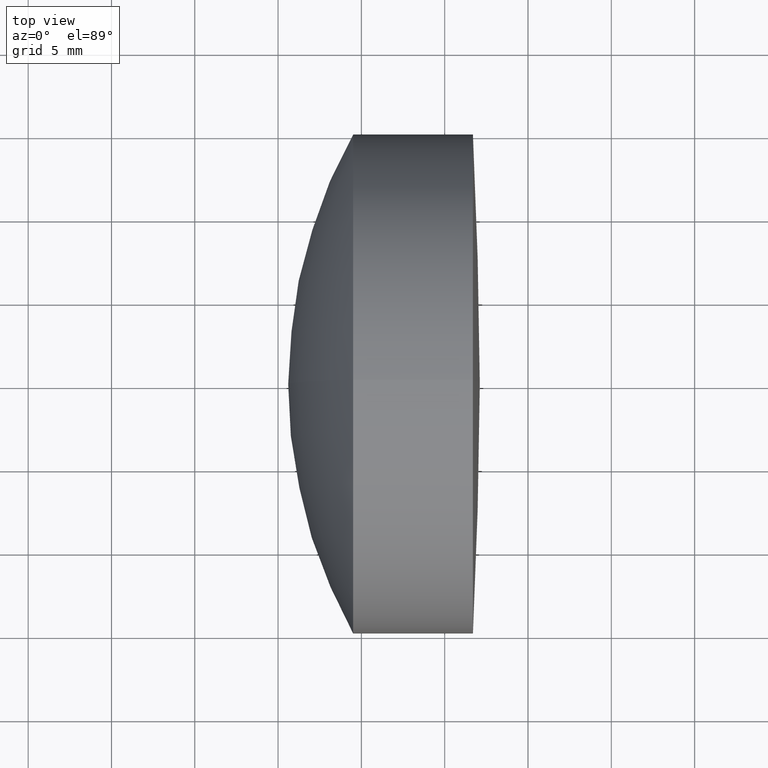
[diagram: clean part render]
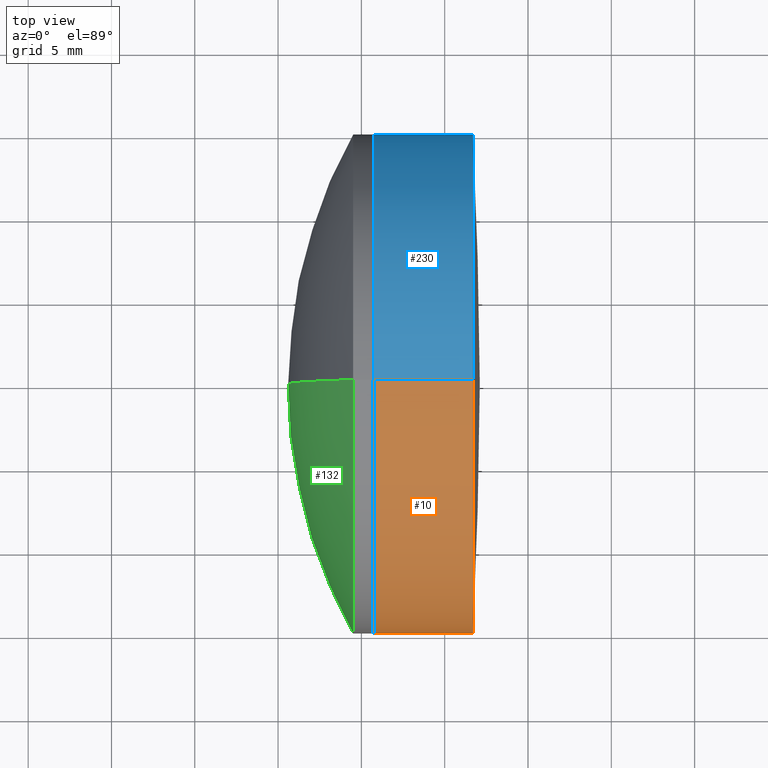
[diagram: same view with three faces highlighted in distinct colors, each labeled with its STEP entity id]
A machine part, top view with three faces highlighted in distinct colors.
Their STEP definitions:

[orange] entity #10 — the highlighted cylindrical surface (partial cylindrical patch) has radius 15 mm, axis along (-1, -0, -0).
#3 = EDGE_LOOP ( 'NONE', ( #291, #43, #317, #302 ) ) ;
#6 = AXIS2_PLACEMENT_3D ( 'NONE', #292, #183, #340 ) ;
#9 = EDGE_CURVE ( 'NONE', #20, #148, #58, .T. ) ;
#10 = ADVANCED_FACE ( 'NONE', ( #21 ), #127, .T. ) ;
#20 = VERTEX_POINT ( 'NONE', #268 ) ;
#21 = FACE_OUTER_BOUND ( 'NONE', #3, .T. ) ;
#38 = CARTESIAN_POINT ( 'NONE',  ( 340.7316331292209400, 1.836970198721026000E-015, -14.99999999999997200 ) ) ;
#43 = ORIENTED_EDGE ( 'NONE', *, *, #9, .T. ) ;
#47 = CARTESIAN_POINT ( 'NONE',  ( 346.6944144773369800, 0.0000000000000000000, 0.0000000000000000000 ) ) ;
#58 = CIRCLE ( 'NONE', #301, 14.99999999999997200 ) ;
#61 = DIRECTION ( 'NONE',  ( 0.0000000000000000000, 0.0000000000000000000, 1.000000000000000000 ) ) ;
#70 = DIRECTION ( 'NONE',  ( -1.000000000000000000, -0.0000000000000000000, -0.0000000000000000000 ) ) ;
#77 = VECTOR ( 'NONE', #151, 1000.000000000000000 ) ;
#78 = DIRECTION ( 'NONE',  ( -1.000000000000000000, -0.0000000000000000000, -0.0000000000000000000 ) ) ;
#102 = VERTEX_POINT ( 'NONE', #38 ) ;
#123 = VERTEX_POINT ( 'NONE', #265 ) ;
#124 = CARTESIAN_POINT ( 'NONE',  ( -0.5519199926577972300, 0.0000000000000000000, 14.99999999999997200 ) ) ;
#127 = CYLINDRICAL_SURFACE ( 'NONE', #342, 14.99999999999997200 ) ;
#130 = CARTESIAN_POINT ( 'NONE',  ( 346.6944144773369800, 0.0000000000000000000, 14.99999999999997200 ) ) ;
#137 = EDGE_CURVE ( 'NONE', #20, #102, #147, .T. ) ;
#141 = LINE ( 'NONE', #124, #172 ) ;
#147 = LINE ( 'NONE', #264, #77 ) ;
#148 = VERTEX_POINT ( 'NONE', #130 ) ;
#151 = DIRECTION ( 'NONE',  ( -1.000000000000000000, -0.0000000000000000000, -0.0000000000000000000 ) ) ;
#152 = EDGE_CURVE ( 'NONE', #102, #123, #219, .T. ) ;
#172 = VECTOR ( 'NONE', #224, 1000.000000000000000 ) ;
#183 = DIRECTION ( 'NONE',  ( -1.000000000000000000, -0.0000000000000000000, -0.0000000000000000000 ) ) ;
#188 = EDGE_CURVE ( 'NONE', #148, #123, #141, .T. ) ;
#219 = CIRCLE ( 'NONE', #6, 14.99999999999997300 ) ;
#224 = DIRECTION ( 'NONE',  ( -1.000000000000000000, -0.0000000000000000000, -0.0000000000000000000 ) ) ;
#239 = DIRECTION ( 'NONE',  ( 0.0000000000000000000, 0.0000000000000000000, 1.000000000000000000 ) ) ;
#264 = CARTESIAN_POINT ( 'NONE',  ( -0.5519199926577972300, 1.836970198721026400E-015, -14.99999999999997200 ) ) ;
#265 = CARTESIAN_POINT ( 'NONE',  ( 340.7316331292209400, 0.0000000000000000000, 14.99999999999997200 ) ) ;
#268 = CARTESIAN_POINT ( 'NONE',  ( 346.6944144773369800, 1.836970198721026400E-015, -14.99999999999997200 ) ) ;
#291 = ORIENTED_EDGE ( 'NONE', *, *, #137, .F. ) ;
#292 = CARTESIAN_POINT ( 'NONE',  ( 340.7316331292209400, 0.0000000000000000000, 0.0000000000000000000 ) ) ;
#301 = AXIS2_PLACEMENT_3D ( 'NONE', #47, #70, #61 ) ;
#302 = ORIENTED_EDGE ( 'NONE', *, *, #152, .F. ) ;
#317 = ORIENTED_EDGE ( 'NONE', *, *, #188, .T. ) ;
#320 = CARTESIAN_POINT ( 'NONE',  ( -0.5519199926577972300, 0.0000000000000000000, 0.0000000000000000000 ) ) ;
#340 = DIRECTION ( 'NONE',  ( 0.0000000000000000000, 0.0000000000000000000, 1.000000000000000000 ) ) ;
#342 = AXIS2_PLACEMENT_3D ( 'NONE', #320, #78, #239 ) ;

[blue] entity #230 — the highlighted cylindrical surface (partial cylindrical patch) has radius 15 mm, axis along (-1, -0, -0).
#17 = DIRECTION ( 'NONE',  ( -1.000000000000000000, -0.0000000000000000000, -0.0000000000000000000 ) ) ;
#20 = VERTEX_POINT ( 'NONE', #268 ) ;
#29 = CARTESIAN_POINT ( 'NONE',  ( -0.5519199926577972300, 0.0000000000000000000, 0.0000000000000000000 ) ) ;
#30 = EDGE_CURVE ( 'NONE', #123, #102, #193, .T. ) ;
#36 = FACE_OUTER_BOUND ( 'NONE', #184, .T. ) ;
#38 = CARTESIAN_POINT ( 'NONE',  ( 340.7316331292209400, 1.836970198721026000E-015, -14.99999999999997200 ) ) ;
#54 = DIRECTION ( 'NONE',  ( 0.0000000000000000000, 0.0000000000000000000, 1.000000000000000000 ) ) ;
#77 = VECTOR ( 'NONE', #151, 1000.000000000000000 ) ;
#90 = ORIENTED_EDGE ( 'NONE', *, *, #188, .F. ) ;
#98 = CIRCLE ( 'NONE', #269, 14.99999999999997200 ) ;
#102 = VERTEX_POINT ( 'NONE', #38 ) ;
#111 = DIRECTION ( 'NONE',  ( -1.000000000000000000, -0.0000000000000000000, -0.0000000000000000000 ) ) ;
#123 = VERTEX_POINT ( 'NONE', #265 ) ;
#124 = CARTESIAN_POINT ( 'NONE',  ( -0.5519199926577972300, 0.0000000000000000000, 14.99999999999997200 ) ) ;
#130 = CARTESIAN_POINT ( 'NONE',  ( 346.6944144773369800, 0.0000000000000000000, 14.99999999999997200 ) ) ;
#137 = EDGE_CURVE ( 'NONE', #20, #102, #147, .T. ) ;
#141 = LINE ( 'NONE', #124, #172 ) ;
#147 = LINE ( 'NONE', #264, #77 ) ;
#148 = VERTEX_POINT ( 'NONE', #130 ) ;
#149 = AXIS2_PLACEMENT_3D ( 'NONE', #29, #194, #54 ) ;
#151 = DIRECTION ( 'NONE',  ( -1.000000000000000000, -0.0000000000000000000, -0.0000000000000000000 ) ) ;
#172 = VECTOR ( 'NONE', #224, 1000.000000000000000 ) ;
#184 = EDGE_LOOP ( 'NONE', ( #223, #263, #206, #90 ) ) ;
#187 = DIRECTION ( 'NONE',  ( 0.0000000000000000000, 0.0000000000000000000, 1.000000000000000000 ) ) ;
#188 = EDGE_CURVE ( 'NONE', #148, #123, #141, .T. ) ;
#193 = CIRCLE ( 'NONE', #343, 14.99999999999997300 ) ;
#194 = DIRECTION ( 'NONE',  ( -1.000000000000000000, -0.0000000000000000000, -0.0000000000000000000 ) ) ;
#206 = ORIENTED_EDGE ( 'NONE', *, *, #30, .F. ) ;
#207 = CARTESIAN_POINT ( 'NONE',  ( 340.7316331292209400, 0.0000000000000000000, 0.0000000000000000000 ) ) ;
#210 = EDGE_CURVE ( 'NONE', #148, #20, #98, .T. ) ;
#223 = ORIENTED_EDGE ( 'NONE', *, *, #210, .T. ) ;
#224 = DIRECTION ( 'NONE',  ( -1.000000000000000000, -0.0000000000000000000, -0.0000000000000000000 ) ) ;
#230 = ADVANCED_FACE ( 'NONE', ( #36 ), #253, .T. ) ;
#253 = CYLINDRICAL_SURFACE ( 'NONE', #149, 14.99999999999997200 ) ;
#263 = ORIENTED_EDGE ( 'NONE', *, *, #137, .T. ) ;
#264 = CARTESIAN_POINT ( 'NONE',  ( -0.5519199926577972300, 1.836970198721026400E-015, -14.99999999999997200 ) ) ;
#265 = CARTESIAN_POINT ( 'NONE',  ( 340.7316331292209400, 0.0000000000000000000, 14.99999999999997200 ) ) ;
#268 = CARTESIAN_POINT ( 'NONE',  ( 346.6944144773369800, 1.836970198721026400E-015, -14.99999999999997200 ) ) ;
#269 = AXIS2_PLACEMENT_3D ( 'NONE', #299, #111, #270 ) ;
#270 = DIRECTION ( 'NONE',  ( 0.0000000000000000000, 0.0000000000000000000, 1.000000000000000000 ) ) ;
#299 = CARTESIAN_POINT ( 'NONE',  ( 346.6944144773369800, 0.0000000000000000000, 0.0000000000000000000 ) ) ;
#343 = AXIS2_PLACEMENT_3D ( 'NONE', #207, #17, #187 ) ;

[green] entity #132 — the highlighted spherical surface has radius 30.8 mm.
#11 = VERTEX_POINT ( 'NONE', #252 ) ;
#16 = CARTESIAN_POINT ( 'NONE',  ( 366.4069652250823900, 0.0000000000000000000, -1.604193031049230700E-015 ) ) ;
#40 = FACE_OUTER_BOUND ( 'NONE', #272, .T. ) ;
#50 = DIRECTION ( 'NONE',  ( 0.0000000000000000000, 0.0000000000000000000, -1.000000000000000000 ) ) ;
#71 = DIRECTION ( 'NONE',  ( 0.0000000000000000000, 0.0000000000000000000, 1.000000000000000000 ) ) ;
#72 = EDGE_CURVE ( 'NONE', #11, #279, #115, .T. ) ;
#73 = DIRECTION ( 'NONE',  ( -0.0000000000000000000, 1.000000000000000000, 1.224646799147353200E-016 ) ) ;
#81 = CIRCLE ( 'NONE', #182, 30.79999999999997900 ) ;
#82 = CARTESIAN_POINT ( 'NONE',  ( 366.4069652250823900, 0.0000000000000000000, -1.604193031049230700E-015 ) ) ;
#94 = SPHERICAL_SURFACE ( 'NONE', #189, 30.79999999999997900 ) ;
#108 = EDGE_CURVE ( 'NONE', #11, #331, #261, .T. ) ;
#115 = CIRCLE ( 'NONE', #280, 14.99999999999999800 ) ;
#132 = ADVANCED_FACE ( 'NONE', ( #40 ), #94, .T. ) ;
#159 = ORIENTED_EDGE ( 'NONE', *, *, #72, .T. ) ;
#170 = CARTESIAN_POINT ( 'NONE',  ( 339.5064076100440500, 0.0000000000000000000, 15.00000000000001800 ) ) ;
#179 = DIRECTION ( 'NONE',  ( -1.000000000000000000, -0.0000000000000000000, -0.0000000000000000000 ) ) ;
#182 = AXIS2_PLACEMENT_3D ( 'NONE', #82, #242, #50 ) ;
#189 = AXIS2_PLACEMENT_3D ( 'NONE', #16, #236, #71 ) ;
#191 = ORIENTED_EDGE ( 'NONE', *, *, #335, .T. ) ;
#204 = CARTESIAN_POINT ( 'NONE',  ( 366.4069652250823900, 0.0000000000000000000, -1.604193031049230700E-015 ) ) ;
#208 = AXIS2_PLACEMENT_3D ( 'NONE', #204, #73, #237 ) ;
#236 = DIRECTION ( 'NONE',  ( 0.0000000000000000000, 1.000000000000000000, 0.0000000000000000000 ) ) ;
#237 = DIRECTION ( 'NONE',  ( 0.0000000000000000000, -1.224646799147353200E-016, 1.000000000000000000 ) ) ;
#242 = DIRECTION ( 'NONE',  ( 0.0000000000000000000, -1.000000000000000000, 0.0000000000000000000 ) ) ;
#252 = CARTESIAN_POINT ( 'NONE',  ( 339.5064076100440500, 1.836970198721032300E-015, -15.00000000000002000 ) ) ;
#261 = CIRCLE ( 'NONE', #208, 30.79999999999997900 ) ;
#272 = EDGE_LOOP ( 'NONE', ( #303, #159, #191 ) ) ;
#279 = VERTEX_POINT ( 'NONE', #170 ) ;
#280 = AXIS2_PLACEMENT_3D ( 'NONE', #336, #179, #310 ) ;
#303 = ORIENTED_EDGE ( 'NONE', *, *, #108, .F. ) ;
#310 = DIRECTION ( 'NONE',  ( 0.0000000000000000000, 0.0000000000000000000, 1.000000000000000000 ) ) ;
#324 = CARTESIAN_POINT ( 'NONE',  ( 335.6069652250823800, 0.0000000000000000000, 2.817630396376919300E-016 ) ) ;
#331 = VERTEX_POINT ( 'NONE', #324 ) ;
#335 = EDGE_CURVE ( 'NONE', #279, #331, #81, .T. ) ;
#336 = CARTESIAN_POINT ( 'NONE',  ( 339.5064076100440500, 0.0000000000000000000, 0.0000000000000000000 ) ) ;